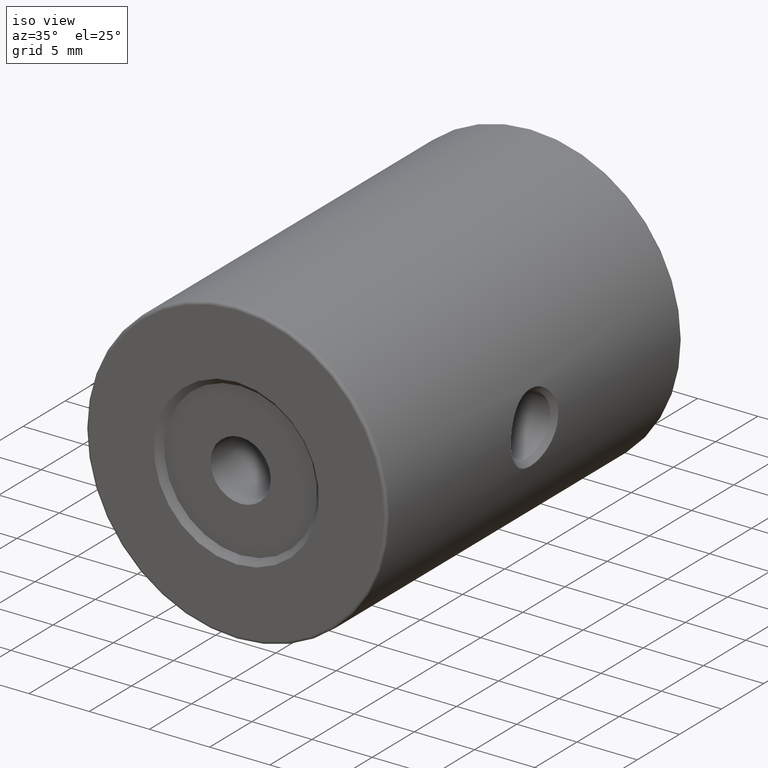
[diagram: clean part render]
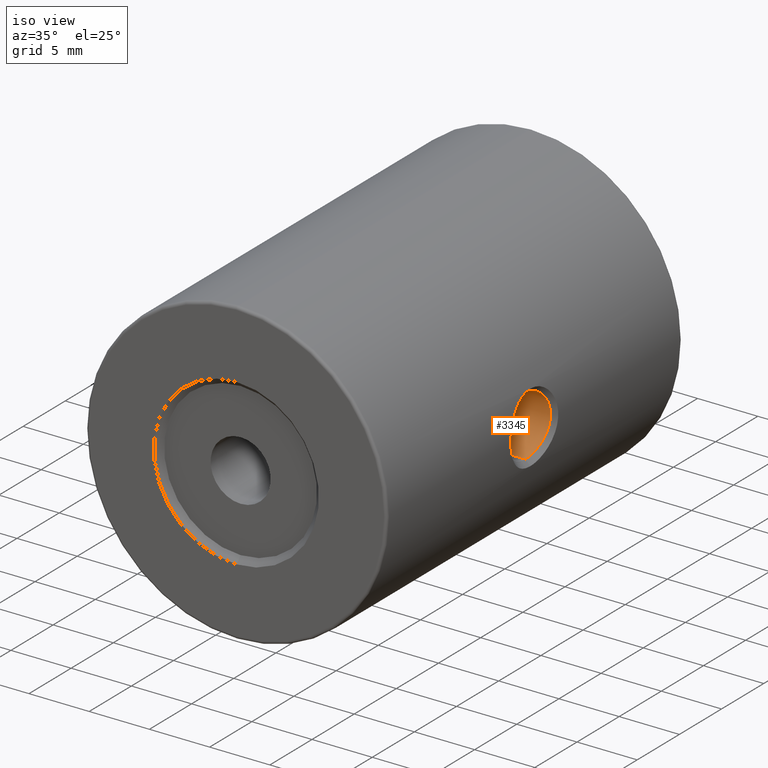
[diagram: same view with one face highlighted and labeled with its STEP entity id]
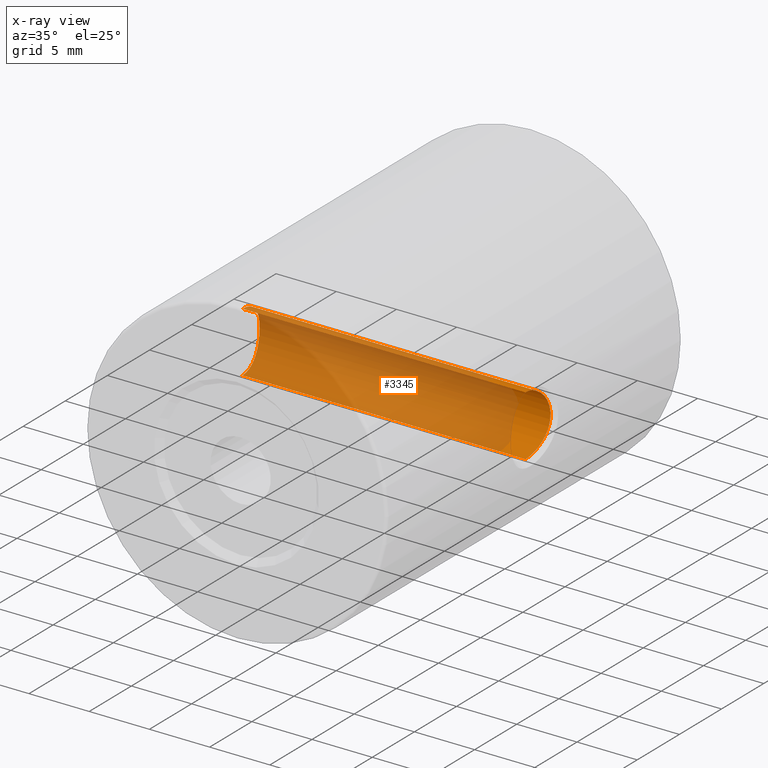
[diagram: x-ray of the same camera — body ghosted, the highlighted face saturated]
A machine part, iso view. The second image highlights one B-rep face of the part: STEP entity #3345.
The next image is the same camera in x-ray: the body ghosted, the highlighted face saturated — about 89% of this face is hidden behind the body in this view.
In plain terms, the highlighted cylindrical surface (partial cylindrical patch) has radius 2.5 mm, axis along (1, -0, -0).
Its self-contained STEP definition (entity closure, byte-faithful):
#15 = CARTESIAN_POINT ( 'NONE',  ( -34.49285213744713019, 3.521659789422908471, 51.32016033919666143 ) ) ;
#16 = CARTESIAN_POINT ( 'NONE',  ( -34.43552205045097026, 3.248773439125556717, 48.31893139336433762 ) ) ;
#20 = CARTESIAN_POINT ( 'NONE',  ( -10.74289442880793466, 1.925329444754342534, 47.55585930733045075 ) ) ;
#34 = CARTESIAN_POINT ( 'NONE',  ( -34.45748932521464525, 3.357772379281679598, 51.55315505949988619 ) ) ;
#35 = CARTESIAN_POINT ( 'NONE',  ( -34.48542199940455077, 3.488133907612052109, 48.62795515745928299 ) ) ;
#54 = CARTESIAN_POINT ( 'NONE',  ( -34.35764467378677978, 2.798077697857475066, 47.92862186132887103 ) ) ;
#70 = CARTESIAN_POINT ( 'NONE',  ( -34.45699076147176498, 3.355189985105045736, 48.44417053944435025 ) ) ;
#90 = CARTESIAN_POINT ( 'NONE',  ( -10.46683874820003446, 3.737504584575336963, 49.11705898936644132 ) ) ;
#103 = VERTEX_POINT ( 'NONE', #1882 ) ;
#104 = CARTESIAN_POINT ( 'NONE',  ( -10.68047853275966297, 2.598575359207321078, 52.19309750925793878 ) ) ;
#106 = CARTESIAN_POINT ( 'NONE',  ( -10.43026627197694722, 3.882253059674058981, 49.67256777598406359 ) ) ;
#122 = CARTESIAN_POINT ( 'NONE',  ( -10.44277018626294051, 3.833558039630815539, 50.56652604515086580 ) ) ;
#123 = CARTESIAN_POINT ( 'NONE',  ( -34.50880725686020156, 3.591694377622421719, 51.19969144278888251 ) ) ;
#134 = CARTESIAN_POINT ( 'NONE',  ( -34.58438561326908456, 3.898334264179400765, 49.92130290164773498 ) ) ;
#137 = CARTESIAN_POINT ( 'NONE',  ( -10.75770789459454591, 1.563061693627785020, 52.49983513836796334 ) ) ;
#138 = ORIENTED_EDGE ( 'NONE', *, *, #3172, .T. ) ;
#139 = CARTESIAN_POINT ( 'NONE',  ( -10.43458761997713502, 3.865409358432842613, 50.40600943156629654 ) ) ;
#141 = CARTESIAN_POINT ( 'NONE',  ( -34.50682289416742066, 3.583092677649828861, 51.21526472592264412 ) ) ;
#157 = CARTESIAN_POINT ( 'NONE',  ( -10.62234100687279081, 2.988962205874693190, 51.92863791231236092 ) ) ;
#158 = CARTESIAN_POINT ( 'NONE',  ( -10.52907118884335524, 3.469515327561137230, 48.60000513657055876 ) ) ;
#172 = CARTESIAN_POINT ( 'NONE',  ( -10.51473777736165083, 3.534110035902920721, 51.29943219385445730 ) ) ;
#182 = EDGE_CURVE ( 'NONE', #1409, #2243, #551, .T. ) ;
#189 = CARTESIAN_POINT ( 'NONE',  ( -10.55675560199588325, 3.338960214639994373, 51.57597055683754661 ) ) ;
#206 = CARTESIAN_POINT ( 'NONE',  ( -10.54431162559052559, 3.398706502495481452, 51.49953276824276571 ) ) ;
#237 = VERTEX_POINT ( 'NONE', #873 ) ;
#243 = CARTESIAN_POINT ( 'NONE',  ( -34.41236803617554330, 3.126786760302455725, 51.80631262442570772 ) ) ;
#260 = CARTESIAN_POINT ( 'NONE',  ( -34.38571617980475992, 2.975046749006317715, 51.94003877003953562 ) ) ;
#261 = CARTESIAN_POINT ( 'NONE',  ( -34.34582147390796081, 2.716998224223053260, 47.87571452047292553 ) ) ;
#277 = CARTESIAN_POINT ( 'NONE',  ( -34.48118596962788018, 3.468845656443985792, 51.40098560067040978 ) ) ;
#278 = CARTESIAN_POINT ( 'NONE',  ( -34.33858617190463747, 2.664240156399068749, 47.84414879120451047 ) ) ;
#296 = CARTESIAN_POINT ( 'NONE',  ( -34.32269212779287670, 2.540851447480994008, 52.22371342456622756 ) ) ;
#298 = CARTESIAN_POINT ( 'NONE',  ( -34.45342034664658115, 3.337851177742004793, 48.42266475102989176 ) ) ;
#316 = CARTESIAN_POINT ( 'NONE',  ( -34.25694026224304878, 1.683161598263844594, 52.48405114421473883 ) ) ;
#317 = CARTESIAN_POINT ( 'NONE',  ( -34.29798120410467988, 2.317666568540645677, 47.67482637241678134 ) ) ;
#335 = CARTESIAN_POINT ( 'NONE',  ( -34.38819594419558712, 2.989748358601316713, 48.07201074934257434 ) ) ;
#339 = CARTESIAN_POINT ( 'NONE',  ( -10.72636834715718912, 2.163316367278159458, 47.61960974747871234 ) ) ;
#354 = CARTESIAN_POINT ( 'NONE',  ( -10.62334915145943981, 2.982996198438270685, 48.06645691304603929 ) ) ;
#368 = CARTESIAN_POINT ( 'NONE',  ( -10.63421686758944595, 2.917547560799810036, 51.98579877779243219 ) ) ;
#369 = CARTESIAN_POINT ( 'NONE',  ( -10.44776976456417117, 3.813993415946430598, 49.35102538161585528 ) ) ;
#371 = CARTESIAN_POINT ( 'NONE',  ( -34.56256781750494866, 3.813732364822528087, 50.64996031636758289 ) ) ;
#386 = CARTESIAN_POINT ( 'NONE',  ( -10.67850231188810106, 2.613847822083724015, 52.18465594213606806 ) ) ;
#388 = CARTESIAN_POINT ( 'NONE',  ( -10.44050617184148244, 3.842400022348095412, 50.52702085068086291 ) ) ;
#401 = CARTESIAN_POINT ( 'NONE',  ( -34.54901993731817811, 3.759636631002451157, 49.17730288344881728 ) ) ;
#408 = CARTESIAN_POINT ( 'NONE',  ( -10.61555385987401046, 3.028785299051773183, 48.10447571371002340 ) ) ;
#422 = CARTESIAN_POINT ( 'NONE',  ( -34.58436337322496001, 3.898250868283255066, 50.00256562447481912 ) ) ;
#425 = CARTESIAN_POINT ( 'NONE',  ( -10.62192216117862209, 2.991433434158935256, 51.92659701926661597 ) ) ;
#426 = CARTESIAN_POINT ( 'NONE',  ( -10.47640660498939269, 3.698224077263589926, 49.01991178304517405 ) ) ;
#440 = CARTESIAN_POINT ( 'NONE',  ( -10.61818952971819918, 3.013288210498445530, 51.90833047861163863 ) ) ;
#441 = CARTESIAN_POINT ( 'NONE',  ( -34.52840305807207244, 3.674981101373739900, 51.03291123787176531 ) ) ;
#455 = CARTESIAN_POINT ( 'NONE',  ( -10.56199101250444272, 3.313389350780303833, 51.60720248136956911 ) ) ;
#472 = CARTESIAN_POINT ( 'NONE',  ( -10.50321221871572774, 3.584739730732567686, 51.21273860971533765 ) ) ;
#506 = CARTESIAN_POINT ( 'NONE',  ( -34.26758693008267898, 1.926671815394933152, 52.44384497078493723 ) ) ;
#526 = B_SPLINE_CURVE_WITH_KNOTS ( 'NONE', 3,
 ( #1133, #2198, #3251, #871, #1686, #20, #1934, #603, #2730, #339, #1412, #2142, #3196, #2474, #1149, #3268, #3214, #834, #887, #1951, #3007, #1878, #548, #1614, #1897, #674, #973, #708, #3300, #2019, #2246, #954, #1164, #1497, #354, #2036, #408, #917, #3020, #1458, #2263, #2518, #2281, #1738, #1215, #2795, #1479, #635, #1981, #1179, #901, #3055, #1702, #2230, #3074, #2814, #158, #2536, #2487, #1966, #2502, #1757, #3337, #1427, #3093, #1773, #3319, #426, #2759, #90, #3285, #3354, #369, #1442, #106, #3037, #1233, #2777, #2297, #654, #139, #1721, #388, #122, #935, #689, #1198, #2001, #2553, #2864, #3107, #1789, #2051, #1281, #2570, #2330, #472, #1542, #172, #2602, #3368, #986, #2348, #1248, #1526, #206, #2846, #2832, #3402, #189, #2312, #455, #723, #2585, #1263, #2070, #3385, #1005, #3123, #739, #1805, #440, #1512, #1161, #425, #157, #1999, #1496, #368, #952, #672, #3054, #3353, #1699, #2262, #1231, #1440, #2775, #386, #104, #2244, #2758, #899, #2552, #934, #2534, #3318, #2229, #1772, #1213, #1717, #2501, #1737, #2793, #137, #1457 ),
 .UNSPECIFIED., .F., .F.,
 ( 4, 2, 2, 2, 2, 1, 2, 2, 1, 2, 2, 2, 1, 2, 2, 2, 1, 1, 1, 2, 2, 2, 2, 2, 2, 2, 1, 2, 2, 2, 1, 2, 2, 2, 2, 2, 1, 2, 2, 2, 2, 2, 2, 2, 2, 2, 2, 2, 1, 2, 2, 1, 2, 2, 2, 1, 2, 2, 2, 1, 1, 2, 2, 2, 2, 2, 2, 2, 1, 1, 2, 2, 2, 1, 2, 2, 2, 2, 2, 1, 2, 2, 2, 2, 2, 2, 4 ),
 ( 0.0000000000000000000, 0.01562499999994248698, 0.03124999999988497396, 0.03906249999985637184, 0.04687499999982776278, 0.05468749999979916065, 0.05859374999978488041, 0.06249999999977060017, 0.07031249999974265030, 0.07421874999972866149, 0.07812499999971467268, 0.08593749999968601505, 0.08984374999967199849, 0.09179687499966467101, 0.09374999999965732966, 0.1015624999996287692, 0.1054687499996140865, 0.1074218749996067312, 0.1083984374996034006, 0.1088867187496021099, 0.1093749999996008054, 0.1171874999995995287, 0.1210937499995988903, 0.1249999999995982380, 0.1328124999995969335, 0.1367187499995962952, 0.1386718749995959343, 0.1396484374995957956, 0.1406249999995956845, 0.1484374999995986266, 0.1523437499995995703, 0.1542968749996005973, 0.1562499999996016242, 0.1640624999996027344, 0.1679687499996038724, 0.1718749999996050104, 0.1796874999996073141, 0.1835937499996084799, 0.1874999999996096178, 0.1953124999996131705, 0.2031249999996167233, 0.2187499999996238287, 0.2499999999996367905, 0.2656249999996432853, 0.2734374999996465050, 0.2812499999996497246, 0.2890624999996529443, 0.2968749999996561639, 0.3046874999996593836, 0.3085937499996616040, 0.3124999999996638245, 0.3203124999996695421, 0.3242187499996730393, 0.3281249999996765365, 0.3359374999996847522, 0.3398437499996894151, 0.3417968749996917466, 0.3437499999996941336, 0.3515624999997035705, 0.3554687499997077893, 0.3574218749997103428, 0.3583984374997111755, 0.3593749999997120637, 0.3671874999997245537, 0.3710937499997308264, 0.3749999999997370437, 0.3828124999997501443, 0.3867187499997566946, 0.3886718749997600253, 0.3896484374997616906, 0.3901367187497625788, 0.3906249999997634115, 0.3984374999997798428, 0.4023437499997881139, 0.4042968749997922218, 0.4062499999997962741, 0.4140624999998120948, 0.4179687499998203659, 0.4218749999998286371, 0.4296874999998452349, 0.4335937499998535616, 0.4374999999998618883, 0.4453124999998790412, 0.4531249999998961941, 0.4609374999999133471, 0.4687499999999305000, 0.5000000000000000000 ),
 .UNSPECIFIED. ) ;
#527 = CARTESIAN_POINT ( 'NONE',  ( -34.37712870114154384, 2.923183176978772391, 51.98126396681389139 ) ) ;
#542 = CARTESIAN_POINT ( 'NONE',  ( -34.47440147007696964, 3.437640223936577755, 51.44621657498061040 ) ) ;
#543 = CARTESIAN_POINT ( 'NONE',  ( -34.30574384668298649, 2.392730145329296398, 47.70622247540588035 ) ) ;
#548 = CARTESIAN_POINT ( 'NONE',  ( -10.66355808635135460, 2.724000046252368357, 47.88028934367972056 ) ) ;
#551 = LINE ( 'NONE', #2958, #3454 ) ;
#560 = CARTESIAN_POINT ( 'NONE',  ( -34.44318529403683726, 3.287420730699175841, 51.63748006440182792 ) ) ;
#561 = CARTESIAN_POINT ( 'NONE',  ( -34.41209200633824139, 3.125665187820356294, 48.19189921007900779 ) ) ;
#570 = DIRECTION ( 'NONE',  ( 1.000000000000000000, -0.0000000000000000000, -0.0000000000000000000 ) ) ;
#580 = CARTESIAN_POINT ( 'NONE',  ( -34.39043842412968388, 3.003052469037369665, 51.91709666625602182 ) ) ;
#582 = CARTESIAN_POINT ( 'NONE',  ( -34.39761001992447120, 3.044417718772057579, 48.11836436407029538 ) ) ;
#587 = EDGE_CURVE ( 'NONE', #103, #2823, #1201, .T. ) ;
#599 = CARTESIAN_POINT ( 'NONE',  ( -34.32972789658966661, 2.597037757402546276, 47.80606120171989915 ) ) ;
#603 = CARTESIAN_POINT ( 'NONE',  ( -10.73534138326080090, 2.045066429621595905, 47.58477174512800190 ) ) ;
#615 = CARTESIAN_POINT ( 'NONE',  ( -34.39518996583043275, 3.030528575944220648, 48.10634144113264909 ) ) ;
#635 = CARTESIAN_POINT ( 'NONE',  ( -10.56077055046614532, 3.319318282669065923, 48.40015022089187369 ) ) ;
#654 = CARTESIAN_POINT ( 'NONE',  ( -10.43146499598586807, 3.877481800831424241, 50.32423554543065336 ) ) ;
#663 = EDGE_CURVE ( 'NONE', #237, #2823, #3183, .T. ) ;
#668 = CARTESIAN_POINT ( 'NONE',  ( -34.58023691177783832, 3.882480711091194525, 49.71662314756401457 ) ) ;
#671 = VERTEX_POINT ( 'NONE', #3304 ) ;
#672 = CARTESIAN_POINT ( 'NONE',  ( -10.64573901249759658, 2.844430916668589937, 52.03941283699971621 ) ) ;
#674 = CARTESIAN_POINT ( 'NONE',  ( -10.65554558621586878, 2.779286966446549378, 47.91605539503085254 ) ) ;
#686 = CARTESIAN_POINT ( 'NONE',  ( -34.51324721833397291, 3.610824642209540247, 48.83600299425413738 ) ) ;
#689 = CARTESIAN_POINT ( 'NONE',  ( -10.45068180355972842, 3.802385365943968587, 50.68683908687285822 ) ) ;
#690 = CARTESIAN_POINT ( 'NONE',  ( -34.53991951119027703, 3.722633376747575884, 50.92141146752689451 ) ) ;
#693 = DIRECTION ( 'NONE',  ( 0.0000000000000000000, 0.0000000000000000000, -1.000000000000000000 ) ) ;
#703 = CARTESIAN_POINT ( 'NONE',  ( -34.52661855604961971, 3.667621899580548295, 48.94979994731872353 ) ) ;
#708 = CARTESIAN_POINT ( 'NONE',  ( -10.64511971509586630, 2.848657792398844979, 47.96333552459014982 ) ) ;
#723 = CARTESIAN_POINT ( 'NONE',  ( -10.56657809085669797, 3.290784664090888434, 51.63401304755067400 ) ) ;
#739 = CARTESIAN_POINT ( 'NONE',  ( -10.61255753572119964, 3.045764872686412161, 51.88045600329557772 ) ) ;
#773 = CARTESIAN_POINT ( 'NONE',  ( -34.44072014335337428, 3.275087769983449082, 51.65163516127910981 ) ) ;
#791 = CARTESIAN_POINT ( 'NONE',  ( -34.45068667024365539, 3.324488735377533644, 51.59362069242172311 ) ) ;
#808 = CARTESIAN_POINT ( 'NONE',  ( -34.26345380780962557, 1.848082027042033504, 52.45952407190137023 ) ) ;
#809 = CARTESIAN_POINT ( 'NONE',  ( -34.38777286730665139, 2.987249506240614139, 48.06995074303021909 ) ) ;
#828 = CARTESIAN_POINT ( 'NONE',  ( -34.27804580035093096, 2.086575151965336605, 52.40370738586211985 ) ) ;
#829 = CARTESIAN_POINT ( 'NONE',  ( -34.33624370791831382, 2.646806171121833362, 47.83401143125456656 ) ) ;
#834 = CARTESIAN_POINT ( 'NONE',  ( -10.68788471831240372, 2.539433061063975927, 47.77555911957305312 ) ) ;
#847 = CARTESIAN_POINT ( 'NONE',  ( -34.25265052839080937, 1.398252184769063433, 52.50000002275201183 ) ) ;
#848 = CARTESIAN_POINT ( 'NONE',  ( -34.26995450285696876, 1.966833508787324547, 47.56517006757929522 ) ) ;
#866 = VECTOR ( 'NONE', #2762, 1000.000000000000000 ) ;
#867 = CARTESIAN_POINT ( 'NONE',  ( -34.48798181166485222, 3.499709095034852169, 48.64575056960991617 ) ) ;
#871 = CARTESIAN_POINT ( 'NONE',  ( -10.75242780081260285, 1.722847840886564175, 47.51981399015355834 ) ) ;
#873 = CARTESIAN_POINT ( 'NONE',  ( -10.75775277531308127, 1.400772240898690013, 52.49999872986310834 ) ) ;
#882 = CARTESIAN_POINT ( 'NONE',  ( -34.36814239120566583, 2.866752692933679292, 47.97665644398611562 ) ) ;
#887 = CARTESIAN_POINT ( 'NONE',  ( -10.68536135106093710, 2.559892940714459275, 47.78618977465039563 ) ) ;
#899 = CARTESIAN_POINT ( 'NONE',  ( -10.70046203537209273, 2.431367238146135534, 52.27663631739387284 ) ) ;
#901 = CARTESIAN_POINT ( 'NONE',  ( -10.55296637921748371, 3.357524876383448209, 48.44652055320454309 ) ) ;
#917 = CARTESIAN_POINT ( 'NONE',  ( -10.60750994316348006, 3.074333090320410022, 48.14496214668842100 ) ) ;
#919 = CARTESIAN_POINT ( 'NONE',  ( -10.75775312123388971, 1.398252184769395834, 52.49999999860907707 ) ) ;
#934 = CARTESIAN_POINT ( 'NONE',  ( -10.70622746959263694, 2.377934762994563744, 52.30014367841743450 ) ) ;
#935 = CARTESIAN_POINT ( 'NONE',  ( -10.44780453270753817, 3.813763724021203672, 50.64573242933737873 ) ) ;
#938 = CARTESIAN_POINT ( 'NONE',  ( -10.75775312123388971, 1.398252184769395834, 52.49999999860907707 ) ) ;
#945 = B_SPLINE_CURVE_WITH_KNOTS ( 'NONE', 3,
 ( #422, #134, #2293, #668, #2789, #3068, #1493, #1228, #949, #2014, #1210, #3332, #401, #968, #1473, #3088, #2566, #703, #2276, #2827, #686, #1751, #1507, #1352, #3004, #867, #35, #1073, #2671, #1090, #2399, #1946, #70, #1682, #298, #2156, #2470, #2415, #16, #3229, #1372, #1337, #561, #1628, #582, #615, #2688, #3210, #2969, #335, #809, #2989, #3458, #1145, #882, #2138, #2932, #3192, #54, #1648, #261, #278, #829, #1893, #599, #1930, #1874, #2434, #543, #1110, #317, #2195, #2950, #2211, #1610, #2175, #848, #1665, #1913, #2725, #2708 ),
 .UNSPECIFIED., .F., .F.,
 ( 4, 2, 2, 2, 2, 2, 1, 2, 2, 1, 2, 2, 2, 1, 2, 2, 2, 1, 1, 2, 2, 2, 2, 2, 2, 2, 1, 1, 2, 2, 2, 1, 2, 2, 2, 2, 2, 1, 2, 2, 2, 2, 2, 2, 4 ),
 ( 0.5000000000000000000, 0.5156264305114740543, 0.5234396457672111369, 0.5312528610229481085, 0.5390660762786851912, 0.5468792915344222738, 0.5546925067901592454, 0.5585991144180284529, 0.5625057220458975493, 0.5703189373016347430, 0.5742255449295032843, 0.5781321525573719367, 0.5859453678131079091, 0.5898519754409752291, 0.5918052792549090002, 0.5937585830688427713, 0.6015717983245790768, 0.6054784059524471740, 0.6074317097663812781, 0.6084083616733486632, 0.6093850135803161594, 0.6171982288360627900, 0.6211048364639356612, 0.6250114440918084213, 0.6328246593475542747, 0.6367312669754270349, 0.6386845707893629154, 0.6396612226963307446, 0.6401495486498141041, 0.6406378746032974636, 0.6484510898590311045, 0.6523576974868974254, 0.6543110013008310855, 0.6562643051147647455, 0.6640775203705009400, 0.6679841279983687041, 0.6718907356262364683, 0.6797039508819716636, 0.6836105585098396498, 0.6875171661377076360, 0.6953303813934434974, 0.7031435966491794698, 0.7109568119049153312, 0.7187700271606511926, 0.7500228881835950823 ),
 .UNSPECIFIED. ) ;
#949 = CARTESIAN_POINT ( 'NONE',  ( -34.56758654008898191, 3.833374463698215884, 49.43267290171467465 ) ) ;
#952 = CARTESIAN_POINT ( 'NONE',  ( -10.64199037483497001, 2.868482314852767612, 52.02208733020420794 ) ) ;
#953 = ORIENTED_EDGE ( 'NONE', *, *, #587, .F. ) ;
#954 = CARTESIAN_POINT ( 'NONE',  ( -10.62573172583953962, 2.968816210442964731, 48.05490762729053245 ) ) ;
#956 = CARTESIAN_POINT ( 'NONE',  ( -34.54356796060093870, 3.737516586819412456, 50.88289497874890088 ) ) ;
#968 = CARTESIAN_POINT ( 'NONE',  ( -34.54369817821552857, 3.738018949585737882, 49.11913398806218822 ) ) ;
#971 = CARTESIAN_POINT ( 'NONE',  ( -34.25265054498070327, 1.398252184769378959, 47.49999999999540989 ) ) ;
#973 = CARTESIAN_POINT ( 'NONE',  ( -10.64996067903255472, 2.816980013347528455, 47.94123184769818380 ) ) ;
#974 = CARTESIAN_POINT ( 'NONE',  ( -34.53407786932806545, 3.698557997504224204, 50.97930073135186291 ) ) ;
#986 = CARTESIAN_POINT ( 'NONE',  ( -10.52471369897246944, 3.489348258723688812, 51.37019330991667942 ) ) ;
#997 = ORIENTED_EDGE ( 'NONE', *, *, #182, .T. ) ;
#1005 = CARTESIAN_POINT ( 'NONE',  ( -10.59807076732466413, 3.126980561815690507, 51.80684960860674693 ) ) ;
#1038 = CARTESIAN_POINT ( 'NONE',  ( -34.28401376549850710, 2.163067110319139452, 52.38047386746292489 ) ) ;
#1056 = CARTESIAN_POINT ( 'NONE',  ( -34.31821333559345533, 2.503614424545476336, 52.24245597250478568 ) ) ;
#1072 = CARTESIAN_POINT ( 'NONE',  ( -34.45094144038274919, 3.325738783172345059, 51.59211394683921981 ) ) ;
#1073 = CARTESIAN_POINT ( 'NONE',  ( -34.48392976939883425, 3.481356260034893957, 48.61769724352969035 ) ) ;
#1089 = CARTESIAN_POINT ( 'NONE',  ( -34.50000485387474214, 3.553290457897505750, 51.26737162486976018 ) ) ;
#1090 = CARTESIAN_POINT ( 'NONE',  ( -34.47355744780920617, 3.433811561399170653, 48.54805109545972641 ) ) ;
#1109 = CARTESIAN_POINT ( 'NONE',  ( -34.48024853830011693, 3.464553031699744157, 51.40729843787066500 ) ) ;
#1110 = CARTESIAN_POINT ( 'NONE',  ( -34.30394296115414221, 2.375711128261827287, 47.69891051550354177 ) ) ;
#1133 = CARTESIAN_POINT ( 'NONE',  ( -10.75775311712864735, 1.398252184769388506, 47.50000000000000000 ) ) ;
#1136 = EDGE_CURVE ( 'NONE', #2243, #237, #526, .T. ) ;
#1145 = CARTESIAN_POINT ( 'NONE',  ( -34.37590333126253483, 2.915794773825882036, 48.01286234926553220 ) ) ;
#1149 = CARTESIAN_POINT ( 'NONE',  ( -10.70476268513781903, 2.392250165711339527, 47.70577093963795789 ) ) ;
#1161 = CARTESIAN_POINT ( 'NONE',  ( -10.62128130365142198, 2.995209600827950958, 51.92347243009047020 ) ) ;
#1164 = CARTESIAN_POINT ( 'NONE',  ( -10.62462732574338808, 2.975400541801451304, 48.06025488632095488 ) ) ;
#1166 = CARTESIAN_POINT ( 'NONE',  ( -34.56756822307148980, 3.833332788814287628, 50.57206592072898133 ) ) ;
#1179 = CARTESIAN_POINT ( 'NONE',  ( -10.55957662423700150, 3.325178140339279942, 48.40720737076457425 ) ) ;
#1198 = CARTESIAN_POINT ( 'NONE',  ( -10.45651490754959312, 3.779148862535461895, 50.76350199337225888 ) ) ;
#1201 = LINE ( 'NONE', #2779, #866 ) ;
#1210 = CARTESIAN_POINT ( 'NONE',  ( -34.55961305451286592, 3.801953961248278446, 49.31165516721773656 ) ) ;
#1213 = CARTESIAN_POINT ( 'NONE',  ( -10.73222477241632866, 2.088477423518492859, 52.40319385075623870 ) ) ;
#1214 = EDGE_LOOP ( 'NONE', ( #953, #1311, #138, #997, #1683, #3283 ) ) ;
#1215 = CARTESIAN_POINT ( 'NONE',  ( -10.56731726940012273, 3.286927316647290986, 48.36195018710067473 ) ) ;
#1228 = CARTESIAN_POINT ( 'NONE',  ( -34.56986290510827331, 3.842265132169273123, 49.47234130247897355 ) ) ;
#1231 = CARTESIAN_POINT ( 'NONE',  ( -10.66434863346028017, 2.718656590096318659, 52.12325621679943310 ) ) ;
#1233 = CARTESIAN_POINT ( 'NONE',  ( -10.42602248527436792, 3.898315734512980413, 50.07909685307398462 ) ) ;
#1234 = CARTESIAN_POINT ( 'NONE',  ( -34.53230527916458925, 3.691218907207127753, 50.99634521869546688 ) ) ;
#1248 = CARTESIAN_POINT ( 'NONE',  ( -10.53178313108946718, 3.457167416195515486, 51.41852374674505910 ) ) ;
#1263 = CARTESIAN_POINT ( 'NONE',  ( -10.57756216025302720, 3.235068673056808120, 51.69607022927496587 ) ) ;
#1281 = CARTESIAN_POINT ( 'NONE',  ( -10.49003806496732594, 3.641181918052230682, 51.10440038296506060 ) ) ;
#1287 = DIRECTION ( 'NONE',  ( 1.000000000000000000, -0.0000000000000000000, -0.0000000000000000000 ) ) ;
#1311 = ORIENTED_EDGE ( 'NONE', *, *, #2728, .T. ) ;
#1317 = CARTESIAN_POINT ( 'NONE',  ( -34.25264969898310596, 1.479168739981686409, 52.50000000000002132 ) ) ;
#1336 = CARTESIAN_POINT ( 'NONE',  ( -34.26149993960545004, 1.805777567639035741, 52.46690698300782429 ) ) ;
#1337 = CARTESIAN_POINT ( 'NONE',  ( -34.42332169519306007, 3.185531405612489042, 48.25173542501483581 ) ) ;
#1351 = CARTESIAN_POINT ( 'NONE',  ( -34.48781591892076648, 3.499084047616687343, 51.35587356921019619 ) ) ;
#1352 = CARTESIAN_POINT ( 'NONE',  ( -34.49541331745766115, 3.532988666244047060, 48.69872623417770541 ) ) ;
#1371 = CARTESIAN_POINT ( 'NONE',  ( -34.38208088997176048, 2.953269912382482154, 51.95758413948211540 ) ) ;
#1372 = CARTESIAN_POINT ( 'NONE',  ( -34.42640494973758081, 3.201698727056150329, 48.26848832628294161 ) ) ;
#1388 = CARTESIAN_POINT ( 'NONE',  ( -10.75775311712864735, 1.398252184769388506, 47.50000000000000000 ) ) ;
#1389 = CARTESIAN_POINT ( 'NONE',  ( -34.29431945051116060, 2.279110160782048311, 52.33977014952113649 ) ) ;
#1409 = VERTEX_POINT ( 'NONE', #971 ) ;
#1412 = CARTESIAN_POINT ( 'NONE',  ( -10.72153079176783130, 2.220792733291344412, 47.63856652003732961 ) ) ;
#1418 = B_SPLINE_CURVE_WITH_KNOTS ( 'NONE', 3,
 ( #847, #1317, #1627, #316, #1892, #1336, #808, #506, #2398, #1840, #828, #1038, #2636, #1389, #2653, #3228, #3439, #2122, #1056, #296, #2687, #1609, #1912, #3174, #3457, #2104, #3154, #3420, #2968, #2414, #3209, #527, #1371, #1873, #260, #2931, #580, #1647, #2912, #2707, #243, #2433, #2670, #2949, #773, #560, #3191, #2897, #2382, #791, #1072, #34, #1857, #1593, #542, #2137, #1109, #277, #1351, #15, #1089, #2155, #141, #123, #2761, #2248, #441, #1234, #974, #690, #956, #2298, #1513, #371, #1166, #2020, #1444, #1759 ),
 .UNSPECIFIED., .F., .F.,
 ( 4, 2, 2, 2, 2, 2, 1, 2, 2, 1, 2, 2, 2, 1, 2, 2, 2, 1, 1, 2, 2, 2, 2, 2, 2, 2, 1, 2, 2, 2, 1, 2, 2, 2, 2, 2, 1, 2, 2, 2, 2, 2, 4 ),
 ( 0.2501157360126692319, 0.2657335025118606198, 0.2735423857614562304, 0.2813512690110518966, 0.2891601522606475627, 0.2969690355102432844, 0.3047779187598389505, 0.3086823603846369779, 0.3125868020094350608, 0.3203956852590305049, 0.3243001268838280327, 0.3282045685086255049, 0.3360134517582200608, 0.3399178933830174221, 0.3418701141954161304, 0.3438223350078148388, 0.3516312182574090062, 0.3555356598822055902, 0.3574878806946042986, 0.3584639911008040691, 0.3594401015070038397, 0.3672489847566091647, 0.3711534263814118551, 0.3750578680062144898, 0.3828667512558199260, 0.3867711928806226718, 0.3887234136930241002, 0.3896995240992255916, 0.3906756345054271384, 0.3984845177550369599, 0.4023889593798424258, 0.4043411801922456861, 0.4062934010046489464, 0.4141022842542622651, 0.4180067258790688411, 0.4219111675038753617, 0.4297200507534884029, 0.4336244923782949234, 0.4375289340031014440, 0.4453378172527133749, 0.4531467005023251948, 0.4687644670015501669, 0.5000000000000000000 ),
 .UNSPECIFIED. ) ;
#1426 = AXIS2_PLACEMENT_3D ( 'NONE', #2556, #1287, #693 ) ;
#1427 = CARTESIAN_POINT ( 'NONE',  ( -10.49467356483297209, 3.621523675961642486, 48.85594951950270826 ) ) ;
#1440 = CARTESIAN_POINT ( 'NONE',  ( -10.67160018277396993, 2.665846511159891463, 52.15490737913459895 ) ) ;
#1442 = CARTESIAN_POINT ( 'NONE',  ( -10.44278610239771332, 3.833526773282275535, 49.42876823398363229 ) ) ;
#1444 = CARTESIAN_POINT ( 'NONE',  ( -34.58431891779849110, 3.898084168968007912, 50.16500095854181751 ) ) ;
#1457 = CARTESIAN_POINT ( 'NONE',  ( -10.75775277531308127, 1.400772240898690013, 52.49999872986310834 ) ) ;
#1458 = CARTESIAN_POINT ( 'NONE',  ( -10.59815998889631672, 3.126107226014884333, 48.19304052233947289 ) ) ;
#1473 = CARTESIAN_POINT ( 'NONE',  ( -34.54002452359227959, 3.723024222472404166, 49.08028894894072636 ) ) ;
#1479 = CARTESIAN_POINT ( 'NONE',  ( -10.56228348234811953, 3.311881166529663911, 48.39123262895878952 ) ) ;
#1493 = CARTESIAN_POINT ( 'NONE',  ( -34.57390506594119728, 3.857997678078328274, 49.55136306853511741 ) ) ;
#1496 = CARTESIAN_POINT ( 'NONE',  ( -10.62866622019873830, 2.951544250995004948, 51.95942332555373611 ) ) ;
#1497 = CARTESIAN_POINT ( 'NONE',  ( -10.62388814465175457, 2.979798253939122343, 48.06383882973954513 ) ) ;
#1507 = CARTESIAN_POINT ( 'NONE',  ( -34.50249771986717207, 3.564307096581606160, 48.75105678478210791 ) ) ;
#1512 = CARTESIAN_POINT ( 'NONE',  ( -10.61969784651965476, 3.004503414530086847, 51.91573604598302438 ) ) ;
#1513 = CARTESIAN_POINT ( 'NONE',  ( -34.55337786558359170, 3.777108215724207074, 50.76993000477993689 ) ) ;
#1526 = CARTESIAN_POINT ( 'NONE',  ( -10.53658929593467519, 3.435006155326824295, 51.45027489283574340 ) ) ;
#1542 = CARTESIAN_POINT ( 'NONE',  ( -10.50766408939979257, 3.565365691849881724, 51.24710472460247246 ) ) ;
#1593 = CARTESIAN_POINT ( 'NONE',  ( -34.47067577741842825, 3.420266628432415246, 51.47033024437611459 ) ) ;
#1609 = CARTESIAN_POINT ( 'NONE',  ( -34.33157960056076519, 2.611711056587256330, 52.18608434739068969 ) ) ;
#1610 = CARTESIAN_POINT ( 'NONE',  ( -34.27801529104798561, 2.086261137766691753, 47.59617280640710391 ) ) ;
#1614 = CARTESIAN_POINT ( 'NONE',  ( -10.65969737156687458, 2.750831973594100255, 47.89746761165659450 ) ) ;
#1627 = CARTESIAN_POINT ( 'NONE',  ( -34.25372203042554986, 1.560659625603804557, 52.49606844198051903 ) ) ;
#1628 = CARTESIAN_POINT ( 'NONE',  ( -34.40566408752110306, 3.090010173997940424, 48.15891080258536761 ) ) ;
#1647 = CARTESIAN_POINT ( 'NONE',  ( -34.39480158161865120, 3.028510403210132207, 51.89576953602817611 ) ) ;
#1648 = CARTESIAN_POINT ( 'NONE',  ( -34.35092222196934841, 2.752779821216207790, 47.89829672660162174 ) ) ;
#1665 = CARTESIAN_POINT ( 'NONE',  ( -34.26768233899774430, 1.928450702691612451, 47.55651474074240070 ) ) ;
#1682 = CARTESIAN_POINT ( 'NONE',  ( -34.45485491284780721, 3.344828457758921125, 48.43128346900462589 ) ) ;
#1683 = ORIENTED_EDGE ( 'NONE', *, *, #1136, .T. ) ;
#1686 = CARTESIAN_POINT ( 'NONE',  ( -10.74912821629456694, 1.806382460939931933, 47.53221428566035200 ) ) ;
#1699 = CARTESIAN_POINT ( 'NONE',  ( -10.65249293293100230, 2.799858131159000063, 52.07017394352398298 ) ) ;
#1702 = CARTESIAN_POINT ( 'NONE',  ( -10.53966556759790052, 3.420558592522417563, 48.53006894744031996 ) ) ;
#1717 = CARTESIAN_POINT ( 'NONE',  ( -10.73510165561819463, 2.048499619657644821, 52.41430491309148465 ) ) ;
#1721 = CARTESIAN_POINT ( 'NONE',  ( -10.43648446060024604, 3.858052394336446422, 50.44832193567446410 ) ) ;
#1737 = CARTESIAN_POINT ( 'NONE',  ( -10.74262275664473698, 1.930177161205954395, 52.44310909606989668 ) ) ;
#1738 = CARTESIAN_POINT ( 'NONE',  ( -10.56979142705348451, 3.274545867989357539, 48.34774838026522303 ) ) ;
#1751 = CARTESIAN_POINT ( 'NONE',  ( -34.50695619508626777, 3.583718661794923932, 48.78542191974751319 ) ) ;
#1757 = CARTESIAN_POINT ( 'NONE',  ( -10.50358629648391684, 3.583068483741939314, 48.78469361680780736 ) ) ;
#1759 = CARTESIAN_POINT ( 'NONE',  ( -34.58436337322496001, 3.898250868283255066, 50.00256562447481912 ) ) ;
#1772 = CARTESIAN_POINT ( 'NONE',  ( -10.72594683895941436, 2.168530309151497359, 52.37874403322789618 ) ) ;
#1773 = CARTESIAN_POINT ( 'NONE',  ( -10.48205551591286699, 3.674751804840877156, 48.96658403318359376 ) ) ;
#1789 = CARTESIAN_POINT ( 'NONE',  ( -10.47777082684026162, 3.692608870424698431, 50.99371643831644008 ) ) ;
#1805 = CARTESIAN_POINT ( 'NONE',  ( -10.61497147234012672, 3.031921984396729108, 51.89245589269313541 ) ) ;
#1840 = CARTESIAN_POINT ( 'NONE',  ( -34.27508428324206591, 2.045357825955212316, 52.41514413049763021 ) ) ;
#1857 = CARTESIAN_POINT ( 'NONE',  ( -34.46296856654289087, 3.383991984431018896, 51.51937197541471392 ) ) ;
#1873 = CARTESIAN_POINT ( 'NONE',  ( -34.38425514537058802, 2.966316391658767593, 51.94710199274100404 ) ) ;
#1874 = CARTESIAN_POINT ( 'NONE',  ( -34.31588000980584496, 2.484643514921074381, 47.74774139938859463 ) ) ;
#1878 = CARTESIAN_POINT ( 'NONE',  ( -10.66726304061081620, 2.697473260006341800, 47.86401275876539785 ) ) ;
#1882 = CARTESIAN_POINT ( 'NONE',  ( -34.25265052839080937, 1.398252184769063433, 52.50000002275201183 ) ) ;
#1892 = CARTESIAN_POINT ( 'NONE',  ( -34.25828129529120503, 1.724039373444708145, 52.47902595956369964 ) ) ;
#1893 = CARTESIAN_POINT ( 'NONE',  ( -34.33169738664192749, 2.612276421382378366, 47.81447061568854906 ) ) ;
#1897 = CARTESIAN_POINT ( 'NONE',  ( -10.65708894826054376, 2.768782829232878662, 47.90912451787374238 ) ) ;
#1912 = CARTESIAN_POINT ( 'NONE',  ( -34.33608617813719377, 2.645985465620542598, 52.16675172972392716 ) ) ;
#1913 = CARTESIAN_POINT ( 'NONE',  ( -34.25694543538725156, 1.724468045713972497, 47.51579507650306766 ) ) ;
#1930 = CARTESIAN_POINT ( 'NONE',  ( -34.32261253376180576, 2.540665696759397463, 47.77588027151613659 ) ) ;
#1934 = CARTESIAN_POINT ( 'NONE',  ( -10.74055264803362242, 1.965160418878954651, 47.56477696204750316 ) ) ;
#1946 = CARTESIAN_POINT ( 'NONE',  ( -34.46186240351598684, 3.378645101896204039, 48.47394285474315723 ) ) ;
#1951 = CARTESIAN_POINT ( 'NONE',  ( -10.67898984604221191, 2.610437434673447132, 47.81320628342418644 ) ) ;
#1966 = CARTESIAN_POINT ( 'NONE',  ( -10.51036542387640971, 3.553437408645560236, 48.73288016706129611 ) ) ;
#1981 = CARTESIAN_POINT ( 'NONE',  ( -10.55978731338615084, 3.324144027144469771, 48.40596271069809120 ) ) ;
#1999 = CARTESIAN_POINT ( 'NONE',  ( -10.62237732879239793, 2.988748929443696412, 51.92881521574156523 ) ) ;
#2001 = CARTESIAN_POINT ( 'NONE',  ( -10.46126713321938162, 3.760105976178882869, 50.82135131906356662 ) ) ;
#2004 = CARTESIAN_POINT ( 'NONE',  ( -10.75775277531308127, 1.400772240898690013, 52.49999872986310834 ) ) ;
#2014 = CARTESIAN_POINT ( 'NONE',  ( -34.56252324084474026, 3.813464430356841905, 49.35313806840347439 ) ) ;
#2019 = CARTESIAN_POINT ( 'NONE',  ( -10.63324832098945905, 2.923347842217415504, 48.01886132538965057 ) ) ;
#2020 = CARTESIAN_POINT ( 'NONE',  ( -34.58011478712224829, 3.882168967649136437, 50.32812387774892215 ) ) ;
#2022 = CARTESIAN_POINT ( 'NONE',  ( -10.75775312484084623, 1.398672224646476669, 52.50000000000002132 ) ) ;
#2036 = CARTESIAN_POINT ( 'NONE',  ( -10.61987164096907676, 3.003599049502476692, 48.08336474951720874 ) ) ;
#2051 = CARTESIAN_POINT ( 'NONE',  ( -10.48362473781027937, 3.668293309279351710, 51.04873908158258189 ) ) ;
#2070 = CARTESIAN_POINT ( 'NONE',  ( -10.58375804988688706, 3.202955632804460162, 51.73020071059040959 ) ) ;
#2090 = CYLINDRICAL_SURFACE ( 'NONE', #1426, 2.500000000000002220 ) ;
#2104 = CARTESIAN_POINT ( 'NONE',  ( -34.35078610549828682, 2.751384864676102104, 52.10217632155634249 ) ) ;
#2122 = CARTESIAN_POINT ( 'NONE',  ( -34.31168622884550956, 2.447977223260807911, 52.26958429963493558 ) ) ;
#2137 = CARTESIAN_POINT ( 'NONE',  ( -34.47793529356673048, 3.453928640778304082, 51.42277278279737374 ) ) ;
#2138 = CARTESIAN_POINT ( 'NONE',  ( -34.36439915017014357, 2.842708139185325944, 47.95936680361555204 ) ) ;
#2142 = CARTESIAN_POINT ( 'NONE',  ( -10.71611989040699875, 2.278727290038250697, 47.66008678486209504 ) ) ;
#2155 = CARTESIAN_POINT ( 'NONE',  ( -34.50232215745696607, 3.563461913716337026, 51.24990526164000926 ) ) ;
#2156 = CARTESIAN_POINT ( 'NONE',  ( -34.45244905414607217, 3.333112005413592094, 48.41686050235845329 ) ) ;
#2175 = CARTESIAN_POINT ( 'NONE',  ( -34.27515475476882756, 2.046380977538189150, 47.58512721042747273 ) ) ;
#2195 = CARTESIAN_POINT ( 'NONE',  ( -34.29425908866209483, 2.279086920259372206, 47.65995889921627793 ) ) ;
#2198 = CARTESIAN_POINT ( 'NONE',  ( -10.75775311712865090, 1.478895169680555677, 47.50000000000001421 ) ) ;
#2211 = CARTESIAN_POINT ( 'NONE',  ( -34.28425718425272350, 2.166107220748068940, 47.62047480791162002 ) ) ;
#2229 = CARTESIAN_POINT ( 'NONE',  ( -10.72288709385847660, 2.204594157731724291, 52.36674351380616343 ) ) ;
#2230 = CARTESIAN_POINT ( 'NONE',  ( -10.53590965403354573, 3.438070091910457649, 48.55438621986304781 ) ) ;
#2243 = VERTEX_POINT ( 'NONE', #1388 ) ;
#2244 = CARTESIAN_POINT ( 'NONE',  ( -10.68758540393424816, 2.542342441898324257, 52.22325597185009372 ) ) ;
#2246 = CARTESIAN_POINT ( 'NONE',  ( -10.62827805860821506, 2.953539933339913937, 48.04262997200537200 ) ) ;
#2248 = CARTESIAN_POINT ( 'NONE',  ( -34.52236465313370672, 3.649729440678909143, 51.08800073529032204 ) ) ;
#2249 = CARTESIAN_POINT ( 'NONE',  ( -10.75775289145709834, 1.400352262137120052, 52.49999915321134125 ) ) ;
#2262 = CARTESIAN_POINT ( 'NONE',  ( -10.65923473109151054, 2.754486190373789167, 52.10060455308656202 ) ) ;
#2263 = CARTESIAN_POINT ( 'NONE',  ( -10.59445844981682328, 3.146199053618092822, 48.21243923077775406 ) ) ;
#2276 = CARTESIAN_POINT ( 'NONE',  ( -34.52017690343700451, 3.640382294783000461, 48.89397580377149666 ) ) ;
#2281 = CARTESIAN_POINT ( 'NONE',  ( -10.57782312020561122, 3.233863439448264820, 48.30230010775589022 ) ) ;
#2284 = CARTESIAN_POINT ( 'NONE',  ( -10.75775306594705327, 1.399512273949566232, 52.49999978827980129 ) ) ;
#2293 = CARTESIAN_POINT ( 'NONE',  ( -34.58335677791280460, 3.894452884659227898, 49.83950915347104171 ) ) ;
#2297 = CARTESIAN_POINT ( 'NONE',  ( -10.43016537474105832, 3.882484663468924069, 50.28332927360801818 ) ) ;
#2298 = CARTESIAN_POINT ( 'NONE',  ( -34.55037290242729142, 3.765055916443146966, 50.80616473622556839 ) ) ;
#2312 = CARTESIAN_POINT ( 'NONE',  ( -10.55773550570406094, 3.334181606825523225, 51.58183139331971034 ) ) ;
#2330 = CARTESIAN_POINT ( 'NONE',  ( -10.49693029462538973, 3.611794956684963864, 51.16215062618274345 ) ) ;
#2348 = CARTESIAN_POINT ( 'NONE',  ( -10.52620299368964396, 3.482587794049737173, 51.38044518716910147 ) ) ;
#2382 = CARTESIAN_POINT ( 'NONE',  ( -34.44970727494356311, 3.319682574711127376, 51.59941220978890186 ) ) ;
#2398 = CARTESIAN_POINT ( 'NONE',  ( -34.26991302516918125, 1.966150412322364982, 52.43498634186597940 ) ) ;
#2399 = CARTESIAN_POINT ( 'NONE',  ( -34.46584608856235121, 3.397542947720119333, 48.49891677629947395 ) ) ;
#2414 = CARTESIAN_POINT ( 'NONE',  ( -34.36529390641892689, 2.848719826729933402, 52.03661785221060398 ) ) ;
#2415 = CARTESIAN_POINT ( 'NONE',  ( -34.44362134590943469, 3.289767285374268990, 48.36480798792825198 ) ) ;
#2433 = CARTESIAN_POINT ( 'NONE',  ( -34.41613788108606542, 3.147235597055149103, 51.78654533557775608 ) ) ;
#2434 = CARTESIAN_POINT ( 'NONE',  ( -34.30972174415776266, 2.429380409477353009, 47.72246266099036660 ) ) ;
#2470 = CARTESIAN_POINT ( 'NONE',  ( -34.44820663201112154, 3.312372979496496228, 48.39158897246389301 ) ) ;
#2474 = CARTESIAN_POINT ( 'NONE',  ( -10.71030778668653127, 2.338251845926785144, 47.68336874343248866 ) ) ;
#2487 = CARTESIAN_POINT ( 'NONE',  ( -10.51747623928508091, 3.521995248717598503, 48.68038661749164220 ) ) ;
#2501 = CARTESIAN_POINT ( 'NONE',  ( -10.74033125496874064, 1.968770041060206255, 52.43437863028942303 ) ) ;
#2502 = CARTESIAN_POINT ( 'NONE',  ( -10.50806148967675391, 3.563549575315044127, 48.75024839436790813 ) ) ;
#2518 = CARTESIAN_POINT ( 'NONE',  ( -10.58398987589644946, 3.202030749089950667, 48.26819460365224046 ) ) ;
#2534 = CARTESIAN_POINT ( 'NONE',  ( -10.71220122382848317, 2.319907301228177232, 52.32428643417108560 ) ) ;
#2536 = CARTESIAN_POINT ( 'NONE',  ( -10.52248213330378945, 3.499559375147797358, 48.64487119404625304 ) ) ;
#2552 = CARTESIAN_POINT ( 'NONE',  ( -10.70443588611057706, 2.394827889901237850, 52.29286643726391759 ) ) ;
#2553 = CARTESIAN_POINT ( 'NONE',  ( -10.46658545540524798, 3.738506329212495594, 50.87957062682637144 ) ) ;
#2556 = CARTESIAN_POINT ( 'NONE',  ( -35.00520183104453764, 1.398252184769388506, 50.00000000000000000 ) ) ;
#2566 = CARTESIAN_POINT ( 'NONE',  ( -34.53249561007080359, 3.692039406747324115, 49.00496577805960641 ) ) ;
#2570 = CARTESIAN_POINT ( 'NONE',  ( -10.49443793111358048, 3.622465759713706213, 51.14162514310569208 ) ) ;
#2585 = CARTESIAN_POINT ( 'NONE',  ( -10.57466531684629452, 3.249874824940449880, 51.67985506952807384 ) ) ;
#2602 = CARTESIAN_POINT ( 'NONE',  ( -10.51837359182651710, 3.517933571058172060, 51.32579008398899134 ) ) ;
#2636 = CARTESIAN_POINT ( 'NONE',  ( -34.28887652144238274, 2.220855473686345505, 52.36141853905816390 ) ) ;
#2653 = CARTESIAN_POINT ( 'NONE',  ( -34.29807699725139969, 2.318030296356796249, 52.32474586824882579 ) ) ;
#2670 = CARTESIAN_POINT ( 'NONE',  ( -34.42657149363617464, 3.202853141484027333, 51.73094316403689419 ) ) ;
#2671 = CARTESIAN_POINT ( 'NONE',  ( -34.47835700617929433, 3.455955106498263874, 48.57972021459210765 ) ) ;
#2687 = CARTESIAN_POINT ( 'NONE',  ( -34.32523023667675233, 2.561403185860264831, 52.21301639183634791 ) ) ;
#2688 = CARTESIAN_POINT ( 'NONE',  ( -34.39195683734667597, 3.011790601605422335, 48.09040291786883614 ) ) ;
#2707 = CARTESIAN_POINT ( 'NONE',  ( -34.40589806358540415, 3.091149904784634028, 51.83975389265526701 ) ) ;
#2708 = CARTESIAN_POINT ( 'NONE',  ( -34.25265054498070327, 1.398252184769378959, 47.49999999999540989 ) ) ;
#2725 = CARTESIAN_POINT ( 'NONE',  ( -34.25265066273421866, 1.560402683420227143, 47.49999999999999289 ) ) ;
#2728 = EDGE_CURVE ( 'NONE', #103, #671, #1418, .T. ) ;
#2730 = CARTESIAN_POINT ( 'NONE',  ( -10.73230878014613410, 2.087230713269384808, 47.59648392039454023 ) ) ;
#2758 = CARTESIAN_POINT ( 'NONE',  ( -10.69431024341988312, 2.486468489780494728, 52.25137420500472274 ) ) ;
#2759 = CARTESIAN_POINT ( 'NONE',  ( -10.47051593470287578, 3.722504065035941778, 49.07824749841098821 ) ) ;
#2761 = CARTESIAN_POINT ( 'NONE',  ( -34.51577102829655530, 3.621698728297560343, 51.14371251336501700 ) ) ;
#2762 = DIRECTION ( 'NONE',  ( 1.000000000000000000, -0.0000000000000000000, -0.0000000000000000000 ) ) ;
#2775 = CARTESIAN_POINT ( 'NONE',  ( -10.67394748183861886, 2.648398513510573871, 52.16507009025183095 ) ) ;
#2777 = CARTESIAN_POINT ( 'NONE',  ( -10.42705158325907711, 3.894432946978843457, 50.16070950317542554 ) ) ;
#2779 = CARTESIAN_POINT ( 'NONE',  ( -35.00520183104453764, 1.398252184769388728, 52.50000000000000711 ) ) ;
#2789 = CARTESIAN_POINT ( 'NONE',  ( -34.57893418754942871, 3.877465556899326593, 49.67562903271111452 ) ) ;
#2793 = CARTESIAN_POINT ( 'NONE',  ( -10.75338199211862111, 1.726486270665421374, 52.48392474897271143 ) ) ;
#2795 = CARTESIAN_POINT ( 'NONE',  ( -10.56391064301611848, 3.303839945648214371, 48.38172606725029112 ) ) ;
#2814 = CARTESIAN_POINT ( 'NONE',  ( -10.53001865074718069, 3.465178259738673994, 48.59361952039272836 ) ) ;
#2823 = VERTEX_POINT ( 'NONE', #919 ) ;
#2827 = CARTESIAN_POINT ( 'NONE',  ( -34.51575700200828578, 3.621574355401045331, 48.85663851803101920 ) ) ;
#2832 = CARTESIAN_POINT ( 'NONE',  ( -10.55317987588929363, 3.356315340068278363, 51.55441317493181685 ) ) ;
#2846 = CARTESIAN_POINT ( 'NONE',  ( -10.54830106101545262, 3.379792021149726988, 51.52456859440660963 ) ) ;
#2864 = CARTESIAN_POINT ( 'NONE',  ( -10.47025680275495496, 3.723524227971772405, 50.91844644550473475 ) ) ;
#2897 = CARTESIAN_POINT ( 'NONE',  ( -34.44820020498716673, 3.312275495858362895, 51.60829794766018352 ) ) ;
#2912 = CARTESIAN_POINT ( 'NONE',  ( -34.40292642917798815, 3.074516548038458641, 51.85487433066655427 ) ) ;
#2931 = CARTESIAN_POINT ( 'NONE',  ( -34.38671495544901546, 2.980983265092096879, 51.93519311266875604 ) ) ;
#2932 = CARTESIAN_POINT ( 'NONE',  ( -34.36086175262402520, 2.819442343711775933, 47.94322949640582010 ) ) ;
#2949 = CARTESIAN_POINT ( 'NONE',  ( -34.43271705920302139, 3.234563490056763246, 51.69693926516849558 ) ) ;
#2950 = CARTESIAN_POINT ( 'NONE',  ( -34.28731963629086721, 2.202316232155696607, 47.63248163844426131 ) ) ;
#2958 = CARTESIAN_POINT ( 'NONE',  ( -35.00520183104453764, 1.398252184769388506, 47.50000000000000000 ) ) ;
#2968 = CARTESIAN_POINT ( 'NONE',  ( -34.36046448215829230, 2.817120072328420655, 52.05867049257812340 ) ) ;
#2969 = CARTESIAN_POINT ( 'NONE',  ( -34.38884296429951348, 2.993564852529801978, 48.07516311299553280 ) ) ;
#2989 = CARTESIAN_POINT ( 'NONE',  ( -34.38771819878179770, 2.986927456117116186, 48.06968425287367808 ) ) ;
#3004 = CARTESIAN_POINT ( 'NONE',  ( -34.49177194385766398, 3.516779192415899757, 48.67236566843896384 ) ) ;
#3007 = CARTESIAN_POINT ( 'NONE',  ( -10.67446526842968169, 2.644881528746962918, 47.83260920299044727 ) ) ;
#3020 = CARTESIAN_POINT ( 'NONE',  ( -10.60456743008197833, 3.090805283784022084, 48.15993217394559167 ) ) ;
#3037 = CARTESIAN_POINT ( 'NONE',  ( -10.42607548033009301, 3.898122724173478826, 49.83585510696211429 ) ) ;
#3054 = CARTESIAN_POINT ( 'NONE',  ( -10.64928047622002261, 2.821165976708219336, 52.05557845529995831 ) ) ;
#3055 = CARTESIAN_POINT ( 'NONE',  ( -10.54743776130608346, 3.383981544170825195, 48.48060507580025558 ) ) ;
#3068 = CARTESIAN_POINT ( 'NONE',  ( -34.57580320139236107, 3.865360020683363373, 49.59368190424287803 ) ) ;
#3074 = CARTESIAN_POINT ( 'NONE',  ( -10.53234901540377777, 3.454478066916288448, 48.57802089523174516 ) ) ;
#3088 = CARTESIAN_POINT ( 'NONE',  ( -34.53799626503107589, 3.714705747827506066, 49.05955801836011432 ) ) ;
#3093 = CARTESIAN_POINT ( 'NONE',  ( -10.48808776789792852, 3.649523439024616955, 48.91157680457565249 ) ) ;
#3107 = CARTESIAN_POINT ( 'NONE',  ( -10.47228985999490547, 3.715187967734124186, 50.93925226527034766 ) ) ;
#3123 = CARTESIAN_POINT ( 'NONE',  ( -10.60451003076379095, 3.091284809329827521, 51.83991627007476666 ) ) ;
#3154 = CARTESIAN_POINT ( 'NONE',  ( -34.35338147968700895, 2.769239204483965988, 52.09057597999159128 ) ) ;
#3172 = EDGE_CURVE ( 'NONE', #671, #1409, #945, .T. ) ;
#3174 = CARTESIAN_POINT ( 'NONE',  ( -34.34325654698247376, 2.698307815741343596, 52.13547844896162076 ) ) ;
#3183 = B_SPLINE_CURVE_WITH_KNOTS ( 'NONE', 3,
 ( #2004, #2249, #2284, #2022, #938 ),
 .UNSPECIFIED., .F., .F.,
 ( 4, 1, 4 ),
 ( 0.5000000000000000000, 0.5000808699276406699, 0.5001617398552814509 ),
 .UNSPECIFIED. ) ;
#3191 = CARTESIAN_POINT ( 'NONE',  ( -34.44657920401206752, 3.304266349220171151, 51.61777152094292376 ) ) ;
#3192 = CARTESIAN_POINT ( 'NONE',  ( -34.35854923059090993, 2.804111315586152564, 47.93272002945202104 ) ) ;
#3196 = CARTESIAN_POINT ( 'NONE',  ( -10.71238521261722454, 2.317432552050752381, 47.67501877044571756 ) ) ;
#3209 = CARTESIAN_POINT ( 'NONE',  ( -34.37309152288768388, 2.898042292361351357, 52.00026168219278588 ) ) ;
#3210 = CARTESIAN_POINT ( 'NONE',  ( -34.39043951126911480, 3.002945015607919821, 48.08295802102040284 ) ) ;
#3214 = CARTESIAN_POINT ( 'NONE',  ( -10.69234182699173275, 2.502332762435968139, 47.75691348785773727 ) ) ;
#3228 = CARTESIAN_POINT ( 'NONE',  ( -34.30016066775904449, 2.338896842633392037, 52.31637011545690541 ) ) ;
#3229 = CARTESIAN_POINT ( 'NONE',  ( -34.43261872424717751, 3.233925465331457527, 48.30269162668212601 ) ) ;
#3251 = CARTESIAN_POINT ( 'NONE',  ( -10.75668805386544058, 1.560100067682679503, 47.50390500056495569 ) ) ;
#3268 = CARTESIAN_POINT ( 'NONE',  ( -10.69883739643234577, 2.446902964364205069, 47.72992432406687868 ) ) ;
#3283 = ORIENTED_EDGE ( 'NONE', *, *, #663, .T. ) ;
#3285 = CARTESIAN_POINT ( 'NONE',  ( -10.45998422923737614, 3.765243383525447296, 49.19437025671351904 ) ) ;
#3300 = CARTESIAN_POINT ( 'NONE',  ( -10.63729871190576937, 2.898126532841106329, 47.99980086166245030 ) ) ;
#3304 = CARTESIAN_POINT ( 'NONE',  ( -34.58436337322496001, 3.898250868283255066, 50.00256562447481912 ) ) ;
#3318 = CARTESIAN_POINT ( 'NONE',  ( -10.71593139896404168, 2.281339582644788866, 52.33919192996598468 ) ) ;
#3319 = CARTESIAN_POINT ( 'NONE',  ( -10.47815702457837794, 3.690975689928348125, 49.00309578717494219 ) ) ;
#3332 = CARTESIAN_POINT ( 'NONE',  ( -34.55377552792413809, 3.778695768204002103, 49.23508877302605669 ) ) ;
#3337 = CARTESIAN_POINT ( 'NONE',  ( -10.50162839173466978, 3.591555904555923551, 48.80005595999681844 ) ) ;
#3345 = ADVANCED_FACE ( 'NONE', ( #3407 ), #2090, .F. ) ;
#3353 = CARTESIAN_POINT ( 'NONE',  ( -10.65159541338159954, 2.805837286584396129, 52.06610518278512956 ) ) ;
#3354 = CARTESIAN_POINT ( 'NONE',  ( -10.45693435472678345, 3.777473808941984590, 49.23120360244183047 ) ) ;
#3368 = CARTESIAN_POINT ( 'NONE',  ( -10.52215786201730552, 3.500899096535783794, 51.35240099877469078 ) ) ;
#3385 = CARTESIAN_POINT ( 'NONE',  ( -10.58680048196469947, 3.187015570641640760, 51.74674765687397127 ) ) ;
#3402 = CARTESIAN_POINT ( 'NONE',  ( -10.55531889802340650, 3.345944087701123948, 51.56733120446104834 ) ) ;
#3407 = FACE_OUTER_BOUND ( 'NONE', #1214, .T. ) ;
#3420 = CARTESIAN_POINT ( 'NONE',  ( -34.35488893523073983, 2.779496485307912490, 52.08380567104752856 ) ) ;
#3439 = CARTESIAN_POINT ( 'NONE',  ( -34.30573236675111559, 2.393111125827059205, 52.29385858849166624 ) ) ;
#3454 = VECTOR ( 'NONE', #570, 1000.000000000000000 ) ;
#3457 = CARTESIAN_POINT ( 'NONE',  ( -34.34694435702525084, 2.724696208868092384, 52.11927320866477231 ) ) ;
#3458 = CARTESIAN_POINT ( 'NONE',  ( -34.38144323528157997, 2.949763339227796433, 48.03916816251668109 ) ) ;